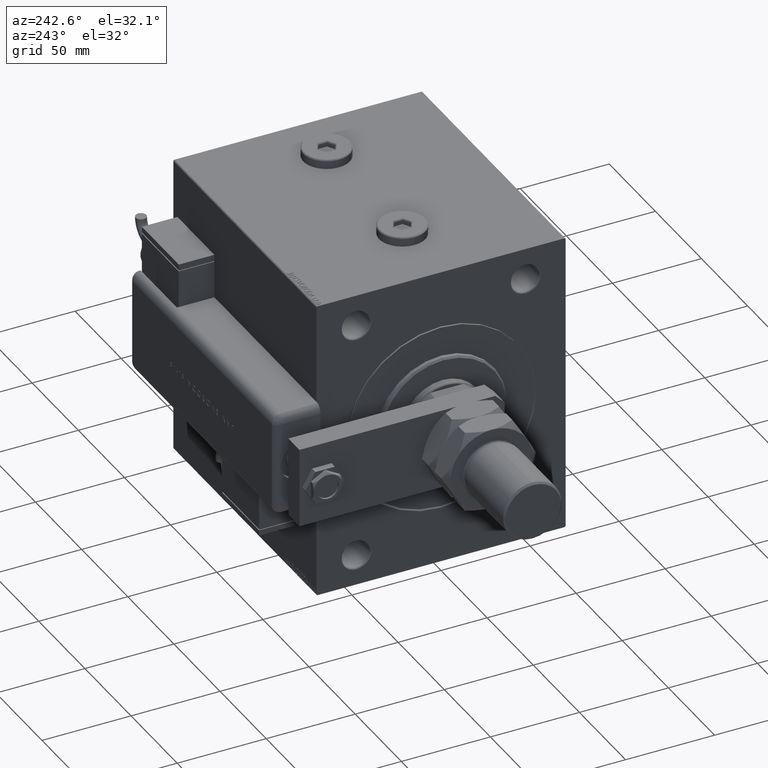
[diagram: clean part render]
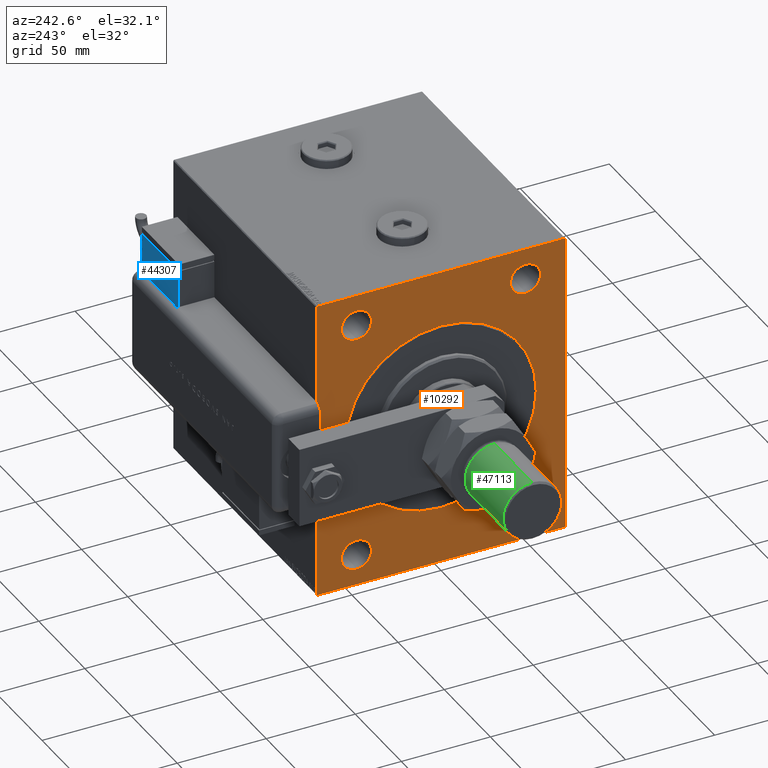
[diagram: same view with three faces highlighted in distinct colors, each labeled with its STEP entity id]
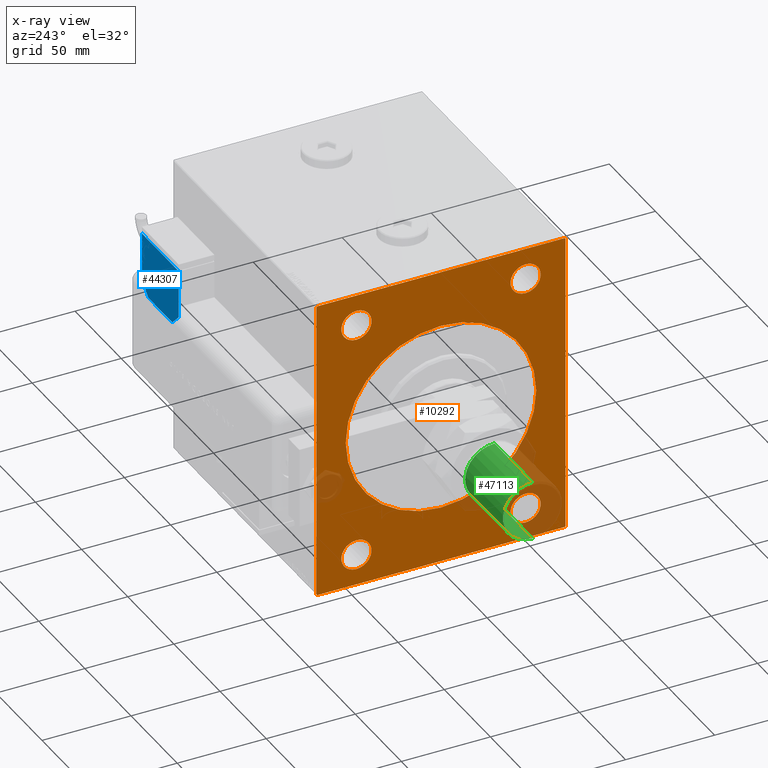
[diagram: x-ray of the same camera — body ghosted, the three highlighted faces saturated]
A machine part, auxiliary view with three faces highlighted in distinct colors.
The next image is the same camera in x-ray (body ghosted, the three faces saturated) — at least one of them is partly hidden behind the body in this view.
Their STEP definitions:

[orange] entity #10292 — the highlighted planar face has unit normal (1, 0, 0).
#214 = ORIENTED_EDGE ( 'NONE', *, *, #40410, .T. ) ;
#527 = CARTESIAN_POINT ( 'NONE',  ( 0.000000000000000000, -47.50000000000000000, 67.49999999999998579 ) ) ;
#664 = VECTOR ( 'NONE', #50471, 999.9999999999998863 ) ;
#706 = EDGE_CURVE ( 'NONE', #9161, #1271, #21251, .T. ) ;
#1271 = VERTEX_POINT ( 'NONE', #4213 ) ;
#1295 = VECTOR ( 'NONE', #50785, 1000.000000000000000 ) ;
#1581 = DIRECTION ( 'NONE',  ( 0.000000000000000000, -1.000000000000000000, -1.982541115402065110E-16 ) ) ;
#1719 = CARTESIAN_POINT ( 'NONE',  ( 0.000000000000000000, 69.50000000000000000, 85.00000000000001421 ) ) ;
#2438 = VERTEX_POINT ( 'NONE', #59064 ) ;
#2692 = CARTESIAN_POINT ( 'NONE',  ( 0.000000000000000000, 47.50000000000000000, 67.49999999999998579 ) ) ;
#2743 = CARTESIAN_POINT ( 'NONE',  ( 0.000000000000000000, 0.000000000000000000, 0.000000000000000000 ) ) ;
#2939 = CARTESIAN_POINT ( 'NONE',  ( 0.000000000000000000, 47.50000000000000000, 58.99999999999998579 ) ) ;
#3167 = CIRCLE ( 'NONE', #9406, 53.50000000000000000 ) ;
#3213 = FACE_BOUND ( 'NONE', #20355, .T. ) ;
#3376 = EDGE_CURVE ( 'NONE', #41146, #31833, #52880, .T. ) ;
#3522 = FACE_BOUND ( 'NONE', #34464, .T. ) ;
#3714 = AXIS2_PLACEMENT_3D ( 'NONE', #49515, #30989, #39634 ) ;
#4213 = CARTESIAN_POINT ( 'NONE',  ( 0.000000000000000000, -47.50000000000000000, 76.00000000000000000 ) ) ;
#4505 = EDGE_CURVE ( 'NONE', #59697, #44261, #61172, .T. ) ;
#4916 = DIRECTION ( 'NONE',  ( 0.000000000000000000, 1.000000000000000000, 0.000000000000000000 ) ) ;
#4974 = CARTESIAN_POINT ( 'NONE',  ( 0.000000000000000000, 47.50000000000000000, 76.00000000000000000 ) ) ;
#5144 = CARTESIAN_POINT ( 'NONE',  ( 0.000000000000000000, -47.50000000000000000, -67.50000000000001421 ) ) ;
#5542 = CARTESIAN_POINT ( 'NONE',  ( 0.000000000000000000, -47.50000000000000000, 58.99999999999998579 ) ) ;
#5591 = EDGE_LOOP ( 'NONE', ( #16585, #19368 ) ) ;
#5635 = DIRECTION ( 'NONE',  ( 1.000000000000000000, 0.000000000000000000, 0.000000000000000000 ) ) ;
#6873 = CARTESIAN_POINT ( 'NONE',  ( 0.000000000000000000, -47.50000000000000000, -76.00000000000002842 ) ) ;
#7156 = CARTESIAN_POINT ( 'NONE',  ( 0.000000000000000000, -47.50000000000000000, -59.00000000000001421 ) ) ;
#8565 = EDGE_CURVE ( 'NONE', #42341, #56795, #17515, .T. ) ;
#8666 = ORIENTED_EDGE ( 'NONE', *, *, #43281, .T. ) ;
#8756 = AXIS2_PLACEMENT_3D ( 'NONE', #14450, #38394, #57857 ) ;
#9161 = VERTEX_POINT ( 'NONE', #5542 ) ;
#9406 = AXIS2_PLACEMENT_3D ( 'NONE', #25615, #45094, #61370 ) ;
#9415 = ORIENTED_EDGE ( 'NONE', *, *, #44638, .F. ) ;
#9662 = ORIENTED_EDGE ( 'NONE', *, *, #19870, .T. ) ;
#9946 = DIRECTION ( 'NONE',  ( 1.000000000000000000, 0.000000000000000000, 0.000000000000000000 ) ) ;
#10292 = ADVANCED_FACE ( 'NONE', ( #47271, #3522, #3213, #55368, #16418, #42171 ), #11310, .F. ) ;
#10505 = CARTESIAN_POINT ( 'NONE',  ( 0.000000000000000000, 47.50000000000000000, -67.50000000000001421 ) ) ;
#10589 = VERTEX_POINT ( 'NONE', #45940 ) ;
#10889 = CIRCLE ( 'NONE', #3714, 8.500000000000007105 ) ;
#11310 = PLANE ( 'NONE',  #58226 ) ;
#11829 = VECTOR ( 'NONE', #53562, 1000.000000000000000 ) ;
#13220 = CARTESIAN_POINT ( 'NONE',  ( 0.000000000000000000, -47.50000000000000000, 67.49999999999998579 ) ) ;
#13522 = ORIENTED_EDGE ( 'NONE', *, *, #706, .T. ) ;
#14139 = VERTEX_POINT ( 'NONE', #23498 ) ;
#14450 = CARTESIAN_POINT ( 'NONE',  ( 0.000000000000000000, -47.50000000000000000, -67.50000000000001421 ) ) ;
#15239 = VECTOR ( 'NONE', #34355, 1000.000000000000000 ) ;
#15304 = DIRECTION ( 'NONE',  ( 1.000000000000000000, 0.000000000000000000, 0.000000000000000000 ) ) ;
#15365 = AXIS2_PLACEMENT_3D ( 'NONE', #10505, #15304, #24540 ) ;
#15399 = CARTESIAN_POINT ( 'NONE',  ( 0.000000000000000000, 47.50000000000000000, -59.00000000000001421 ) ) ;
#16418 = FACE_BOUND ( 'NONE', #31904, .T. ) ;
#16585 = ORIENTED_EDGE ( 'NONE', *, *, #4505, .T. ) ;
#17442 = DIRECTION ( 'NONE',  ( 1.000000000000000000, 0.000000000000000000, 0.000000000000000000 ) ) ;
#17515 = CIRCLE ( 'NONE', #39939, 8.500000000000007105 ) ;
#17566 = CARTESIAN_POINT ( 'NONE',  ( 0.000000000000000000, -70.00000000000000000, 84.99999999999998579 ) ) ;
#17693 = ORIENTED_EDGE ( 'NONE', *, *, #8565, .T. ) ;
#17894 = VECTOR ( 'NONE', #55606, 999.9999999999998863 ) ;
#17911 = DIRECTION ( 'NONE',  ( 1.000000000000000000, 0.000000000000000000, 0.000000000000000000 ) ) ;
#18374 = LINE ( 'NONE', #48675, #53842 ) ;
#18981 = DIRECTION ( 'NONE',  ( -0.000000000000000000, 0.7071067811865672237, 0.7071067811865279218 ) ) ;
#19368 = ORIENTED_EDGE ( 'NONE', *, *, #20689, .T. ) ;
#19870 = EDGE_CURVE ( 'NONE', #1271, #9161, #43271, .T. ) ;
#20355 = EDGE_LOOP ( 'NONE', ( #9662, #13522 ) ) ;
#20689 = EDGE_CURVE ( 'NONE', #44261, #59697, #45376, .T. ) ;
#21251 = CIRCLE ( 'NONE', #63079, 8.500000000000007105 ) ;
#21554 = DIRECTION ( 'NONE',  ( 1.000000000000000000, 0.000000000000000000, 0.000000000000000000 ) ) ;
#21918 = AXIS2_PLACEMENT_3D ( 'NONE', #13220, #47679, #56949 ) ;
#22487 = DIRECTION ( 'NONE',  ( 0.000000000000000000, 0.000000000000000000, -1.000000000000000000 ) ) ;
#23498 = CARTESIAN_POINT ( 'NONE',  ( 0.000000000000000000, -70.00000000000000000, 84.49999999999998579 ) ) ;
#23505 = CARTESIAN_POINT ( 'NONE',  ( 0.000000000000000000, 47.50000000000000000, 67.49999999999998579 ) ) ;
#23945 = AXIS2_PLACEMENT_3D ( 'NONE', #2692, #21554, #22487 ) ;
#24049 = EDGE_CURVE ( 'NONE', #41146, #38832, #40883, .T. ) ;
#24329 = EDGE_CURVE ( 'NONE', #28331, #29858, #10889, .T. ) ;
#24418 = EDGE_LOOP ( 'NONE', ( #9415, #8666, #28262, #32895, #51478, #31306, #55689, #24722 ) ) ;
#24540 = DIRECTION ( 'NONE',  ( 0.000000000000000000, 0.000000000000000000, -1.000000000000000000 ) ) ;
#24722 = ORIENTED_EDGE ( 'NONE', *, *, #50611, .T. ) ;
#25615 = CARTESIAN_POINT ( 'NONE',  ( 0.000000000000000000, 0.000000000000000000, 0.000000000000000000 ) ) ;
#25742 = DIRECTION ( 'NONE',  ( 0.000000000000000000, 0.000000000000000000, -1.000000000000000000 ) ) ;
#28262 = ORIENTED_EDGE ( 'NONE', *, *, #51954, .F. ) ;
#28331 = VERTEX_POINT ( 'NONE', #15399 ) ;
#28927 = DIRECTION ( 'NONE',  ( 0.000000000000000000, 0.000000000000000000, -1.000000000000000000 ) ) ;
#29858 = VERTEX_POINT ( 'NONE', #31513 ) ;
#30989 = DIRECTION ( 'NONE',  ( 1.000000000000000000, 0.000000000000000000, 0.000000000000000000 ) ) ;
#31142 = CARTESIAN_POINT ( 'NONE',  ( 0.000000000000000000, 70.00000000000001421, -84.50000000000000000 ) ) ;
#31306 = ORIENTED_EDGE ( 'NONE', *, *, #24049, .T. ) ;
#31513 = CARTESIAN_POINT ( 'NONE',  ( 0.000000000000000000, 47.50000000000000000, -76.00000000000002842 ) ) ;
#31833 = VERTEX_POINT ( 'NONE', #59574 ) ;
#31904 = EDGE_LOOP ( 'NONE', ( #51295, #59099 ) ) ;
#32206 = CIRCLE ( 'NONE', #40358, 53.50000000000000000 ) ;
#32430 = LINE ( 'NONE', #33671, #51227 ) ;
#32608 = CARTESIAN_POINT ( 'NONE',  ( 0.000000000000000000, 69.50000000000000000, -85.00000000000000000 ) ) ;
#32895 = ORIENTED_EDGE ( 'NONE', *, *, #55489, .T. ) ;
#33671 = CARTESIAN_POINT ( 'NONE',  ( 0.000000000000000000, -70.00000000000000000, 84.49999999999998579 ) ) ;
#33731 = DIRECTION ( 'NONE',  ( 1.000000000000000000, 0.000000000000000000, 0.000000000000000000 ) ) ;
#34355 = DIRECTION ( 'NONE',  ( 0.000000000000000000, -8.163404592832031500E-17, 1.000000000000000000 ) ) ;
#34464 = EDGE_LOOP ( 'NONE', ( #43899, #17693 ) ) ;
#35596 = ORIENTED_EDGE ( 'NONE', *, *, #55197, .T. ) ;
#36033 = EDGE_CURVE ( 'NONE', #29858, #28331, #59189, .T. ) ;
#36079 = LINE ( 'NONE', #46582, #52620 ) ;
#36312 = CIRCLE ( 'NONE', #8756, 8.500000000000007105 ) ;
#38394 = DIRECTION ( 'NONE',  ( 1.000000000000000000, 0.000000000000000000, 0.000000000000000000 ) ) ;
#38745 = AXIS2_PLACEMENT_3D ( 'NONE', #23505, #33731, #28927 ) ;
#38832 = VERTEX_POINT ( 'NONE', #32608 ) ;
#39093 = VERTEX_POINT ( 'NONE', #58023 ) ;
#39150 = VERTEX_POINT ( 'NONE', #57713 ) ;
#39634 = DIRECTION ( 'NONE',  ( 0.000000000000000000, 0.000000000000000000, -1.000000000000000000 ) ) ;
#39939 = AXIS2_PLACEMENT_3D ( 'NONE', #5144, #9946, #40267 ) ;
#40267 = DIRECTION ( 'NONE',  ( 0.000000000000000000, 0.000000000000000000, -1.000000000000000000 ) ) ;
#40358 = AXIS2_PLACEMENT_3D ( 'NONE', #2743, #17442, #42320 ) ;
#40410 = EDGE_CURVE ( 'NONE', #2438, #39150, #3167, .T. ) ;
#40878 = LINE ( 'NONE', #17566, #1295 ) ;
#40883 = LINE ( 'NONE', #60674, #664 ) ;
#41146 = VERTEX_POINT ( 'NONE', #31142 ) ;
#42086 = LINE ( 'NONE', #1719, #11829 ) ;
#42171 = FACE_OUTER_BOUND ( 'NONE', #24418, .T. ) ;
#42320 = DIRECTION ( 'NONE',  ( 0.000000000000000000, 0.000000000000000000, -1.000000000000000000 ) ) ;
#42341 = VERTEX_POINT ( 'NONE', #6873 ) ;
#43271 = CIRCLE ( 'NONE', #21918, 8.500000000000007105 ) ;
#43281 = EDGE_CURVE ( 'NONE', #14139, #10589, #32430, .T. ) ;
#43894 = VERTEX_POINT ( 'NONE', #58686 ) ;
#43899 = ORIENTED_EDGE ( 'NONE', *, *, #55700, .T. ) ;
#44261 = VERTEX_POINT ( 'NONE', #2939 ) ;
#44570 = CARTESIAN_POINT ( 'NONE',  ( 0.000000000000000000, -69.50000000000000000, -85.00000000000000000 ) ) ;
#44638 = EDGE_CURVE ( 'NONE', #14139, #39093, #40878, .T. ) ;
#45094 = DIRECTION ( 'NONE',  ( 1.000000000000000000, 0.000000000000000000, 0.000000000000000000 ) ) ;
#45376 = CIRCLE ( 'NONE', #23945, 8.500000000000007105 ) ;
#45940 = CARTESIAN_POINT ( 'NONE',  ( 0.000000000000000000, -69.49999999999997158, 84.99999999999998579 ) ) ;
#46582 = CARTESIAN_POINT ( 'NONE',  ( 0.000000000000000000, 70.00000000000000000, 85.00000000000001421 ) ) ;
#47271 = FACE_BOUND ( 'NONE', #48322, .T. ) ;
#47679 = DIRECTION ( 'NONE',  ( 1.000000000000000000, 0.000000000000000000, 0.000000000000000000 ) ) ;
#48322 = EDGE_LOOP ( 'NONE', ( #35596, #214 ) ) ;
#48675 = CARTESIAN_POINT ( 'NONE',  ( 0.000000000000000000, -70.00000000000000000, -85.00000000000000000 ) ) ;
#49515 = CARTESIAN_POINT ( 'NONE',  ( 0.000000000000000000, 47.50000000000000000, -67.50000000000001421 ) ) ;
#50471 = DIRECTION ( 'NONE',  ( 0.000000000000000000, -0.7071067811865574537, -0.7071067811865376918 ) ) ;
#50611 = EDGE_CURVE ( 'NONE', #60984, #39093, #51143, .T. ) ;
#50785 = DIRECTION ( 'NONE',  ( 0.000000000000000000, 0.000000000000000000, -1.000000000000000000 ) ) ;
#50828 = CARTESIAN_POINT ( 'NONE',  ( 0.000000000000000000, -69.50000000000000000, -85.00000000000000000 ) ) ;
#51143 = LINE ( 'NONE', #50828, #17894 ) ;
#51227 = VECTOR ( 'NONE', #18981, 1000.000000000000000 ) ;
#51295 = ORIENTED_EDGE ( 'NONE', *, *, #24329, .T. ) ;
#51478 = ORIENTED_EDGE ( 'NONE', *, *, #3376, .F. ) ;
#51954 = EDGE_CURVE ( 'NONE', #43894, #10589, #36079, .T. ) ;
#52620 = VECTOR ( 'NONE', #1581, 1000.000000000000000 ) ;
#52880 = LINE ( 'NONE', #63078, #15239 ) ;
#53562 = DIRECTION ( 'NONE',  ( -0.000000000000000000, 0.7071067811865181518, -0.7071067811865769936 ) ) ;
#53842 = VECTOR ( 'NONE', #4916, 1000.000000000000000 ) ;
#55197 = EDGE_CURVE ( 'NONE', #39150, #2438, #32206, .T. ) ;
#55368 = FACE_BOUND ( 'NONE', #5591, .T. ) ;
#55489 = EDGE_CURVE ( 'NONE', #43894, #31833, #42086, .T. ) ;
#55606 = DIRECTION ( 'NONE',  ( -0.000000000000000000, -0.7071067811865376918, 0.7071067811865574537 ) ) ;
#55689 = ORIENTED_EDGE ( 'NONE', *, *, #62525, .F. ) ;
#55700 = EDGE_CURVE ( 'NONE', #56795, #42341, #36312, .T. ) ;
#56795 = VERTEX_POINT ( 'NONE', #7156 ) ;
#56853 = DIRECTION ( 'NONE',  ( 0.000000000000000000, 0.000000000000000000, -1.000000000000000000 ) ) ;
#56949 = DIRECTION ( 'NONE',  ( 0.000000000000000000, 0.000000000000000000, -1.000000000000000000 ) ) ;
#57713 = CARTESIAN_POINT ( 'NONE',  ( 0.000000000000000000, 0.000000000000000000, 53.50000000000000000 ) ) ;
#57857 = DIRECTION ( 'NONE',  ( 0.000000000000000000, 0.000000000000000000, -1.000000000000000000 ) ) ;
#58023 = CARTESIAN_POINT ( 'NONE',  ( 0.000000000000000000, -70.00000000000000000, -84.49999999999998579 ) ) ;
#58226 = AXIS2_PLACEMENT_3D ( 'NONE', #60155, #17911, #56853 ) ;
#58686 = CARTESIAN_POINT ( 'NONE',  ( 0.000000000000000000, 69.50000000000000000, 85.00000000000001421 ) ) ;
#59064 = CARTESIAN_POINT ( 'NONE',  ( 0.000000000000000000, 6.551860375438339893E-15, -53.50000000000000000 ) ) ;
#59099 = ORIENTED_EDGE ( 'NONE', *, *, #36033, .T. ) ;
#59189 = CIRCLE ( 'NONE', #15365, 8.500000000000007105 ) ;
#59574 = CARTESIAN_POINT ( 'NONE',  ( 0.000000000000000000, 70.00000000000000000, 84.49999999999997158 ) ) ;
#59697 = VERTEX_POINT ( 'NONE', #4974 ) ;
#60155 = CARTESIAN_POINT ( 'NONE',  ( 0.000000000000000000, 0.000000000000000000, 0.000000000000000000 ) ) ;
#60674 = CARTESIAN_POINT ( 'NONE',  ( 0.000000000000000000, 70.00000000000001421, -84.50000000000000000 ) ) ;
#60984 = VERTEX_POINT ( 'NONE', #44570 ) ;
#61172 = CIRCLE ( 'NONE', #38745, 8.500000000000007105 ) ;
#61370 = DIRECTION ( 'NONE',  ( 0.000000000000000000, 0.000000000000000000, -1.000000000000000000 ) ) ;
#62525 = EDGE_CURVE ( 'NONE', #60984, #38832, #18374, .T. ) ;
#63078 = CARTESIAN_POINT ( 'NONE',  ( 0.000000000000000000, 70.00000000000001421, -85.00000000000000000 ) ) ;
#63079 = AXIS2_PLACEMENT_3D ( 'NONE', #527, #5635, #25742 ) ;

[blue] entity #44307 — the highlighted planar face has unit normal (-0, -1, 0).
#25 = DIRECTION ( 'NONE',  ( 1.284980352575412699E-16, 1.000000000000000000, 0.000000000000000000 ) ) ;
#339 = CARTESIAN_POINT ( 'NONE',  ( 20.00000000000005329, -13.49999999999996092, -10.00000000000000000 ) ) ;
#1343 = EDGE_CURVE ( 'NONE', #49874, #29918, #62032, .T. ) ;
#3702 = DIRECTION ( 'NONE',  ( 1.000000000000000000, 0.000000000000000000, 0.000000000000000000 ) ) ;
#3874 = EDGE_CURVE ( 'NONE', #36123, #9298, #8355, .T. ) ;
#6331 = CARTESIAN_POINT ( 'NONE',  ( -12.99999999999994138, 20.50000000000009592, -10.00000000000000000 ) ) ;
#6466 = ORIENTED_EDGE ( 'NONE', *, *, #44514, .F. ) ;
#6645 = ORIENTED_EDGE ( 'NONE', *, *, #3874, .F. ) ;
#7325 = VECTOR ( 'NONE', #3702, 1000.000000000000000 ) ;
#8355 = LINE ( 'NONE', #61374, #22432 ) ;
#9298 = VERTEX_POINT ( 'NONE', #14117 ) ;
#9605 = DIRECTION ( 'NONE',  ( 1.000000000000000000, 0.000000000000000000, -0.000000000000000000 ) ) ;
#9932 = EDGE_CURVE ( 'NONE', #9298, #19630, #20493, .T. ) ;
#10072 = CARTESIAN_POINT ( 'NONE',  ( -19.99999999999994316, -13.49999999999996092, -10.00000000000000000 ) ) ;
#10283 = DIRECTION ( 'NONE',  ( -1.284980352575421081E-16, -1.000000000000000000, -0.000000000000000000 ) ) ;
#11206 = ORIENTED_EDGE ( 'NONE', *, *, #27805, .F. ) ;
#12223 = ORIENTED_EDGE ( 'NONE', *, *, #39973, .T. ) ;
#12359 = CARTESIAN_POINT ( 'NONE',  ( 20.00000000000005329, -13.49999999999996092, -10.00000000000000000 ) ) ;
#12980 = CARTESIAN_POINT ( 'NONE',  ( -19.99999999999993960, 2.569960705150834076E-15, -9.999999999999996447 ) ) ;
#13184 = VECTOR ( 'NONE', #37775, 1000.000000000000114 ) ;
#14117 = CARTESIAN_POINT ( 'NONE',  ( -19.99999999999993960, 13.49999999999986500, -10.00000000000000000 ) ) ;
#14230 = ORIENTED_EDGE ( 'NONE', *, *, #9932, .F. ) ;
#16256 = DIRECTION ( 'NONE',  ( 1.000000000000000000, 0.000000000000000000, 0.000000000000000000 ) ) ;
#17399 = ORIENTED_EDGE ( 'NONE', *, *, #40087, .F. ) ;
#17955 = PLANE ( 'NONE',  #57356 ) ;
#18262 = DIRECTION ( 'NONE',  ( 0.000000000000000000, 0.000000000000000000, 1.000000000000000000 ) ) ;
#18295 = CARTESIAN_POINT ( 'NONE',  ( 9.999999999999984013, 23.50000000000009592, -10.00000000000000000 ) ) ;
#19630 = VERTEX_POINT ( 'NONE', #12980 ) ;
#20493 = LINE ( 'NONE', #45380, #38972 ) ;
#20726 = LINE ( 'NONE', #54268, #41619 ) ;
#22432 = VECTOR ( 'NONE', #27512, 1000.000000000000000 ) ;
#27512 = DIRECTION ( 'NONE',  ( -0.7071067811865356934, -0.7071067811865593411, -0.000000000000000000 ) ) ;
#27805 = EDGE_CURVE ( 'NONE', #55088, #57479, #20726, .T. ) ;
#28143 = FACE_OUTER_BOUND ( 'NONE', #58109, .T. ) ;
#29918 = VERTEX_POINT ( 'NONE', #51254 ) ;
#34502 = ORIENTED_EDGE ( 'NONE', *, *, #1343, .F. ) ;
#36123 = VERTEX_POINT ( 'NONE', #6331 ) ;
#37775 = DIRECTION ( 'NONE',  ( -0.7071067811865479058, 0.7071067811865470176, -0.000000000000000000 ) ) ;
#37881 = LINE ( 'NONE', #52563, #7325 ) ;
#38972 = VECTOR ( 'NONE', #10283, 1000.000000000000000 ) ;
#39973 = EDGE_CURVE ( 'NONE', #36123, #29918, #37881, .T. ) ;
#40087 = EDGE_CURVE ( 'NONE', #19630, #55088, #53820, .T. ) ;
#41619 = VECTOR ( 'NONE', #16256, 1000.000000000000000 ) ;
#42007 = VECTOR ( 'NONE', #58912, 1000.000000000000000 ) ;
#43081 = VECTOR ( 'NONE', #25, 1000.000000000000000 ) ;
#44278 = CARTESIAN_POINT ( 'NONE',  ( 20.00000000000005684, 13.50000000000003730, -10.00000000000000000 ) ) ;
#44307 = ADVANCED_FACE ( 'NONE', ( #28143 ), #17955, .F. ) ;
#44514 = EDGE_CURVE ( 'NONE', #57479, #49874, #59726, .T. ) ;
#45380 = CARTESIAN_POINT ( 'NONE',  ( -19.99999999999994316, -13.49999999999996092, -10.00000000000000000 ) ) ;
#49874 = VERTEX_POINT ( 'NONE', #44278 ) ;
#51254 = CARTESIAN_POINT ( 'NONE',  ( 12.99999999999999112, 20.50000000000009592, -10.00000000000000000 ) ) ;
#51912 = CARTESIAN_POINT ( 'NONE',  ( -19.99999999999994316, -13.49999999999996092, -10.00000000000000000 ) ) ;
#52563 = CARTESIAN_POINT ( 'NONE',  ( 0.000000000000000000, 20.50000000000009592, -10.00000000000000000 ) ) ;
#53367 = CARTESIAN_POINT ( 'NONE',  ( 0.000000000000000000, 0.000000000000000000, -10.00000000000000000 ) ) ;
#53820 = LINE ( 'NONE', #10072, #42007 ) ;
#54268 = CARTESIAN_POINT ( 'NONE',  ( -19.99999999999994316, -13.49999999999996092, -10.00000000000000000 ) ) ;
#55088 = VERTEX_POINT ( 'NONE', #51912 ) ;
#57356 = AXIS2_PLACEMENT_3D ( 'NONE', #53367, #18262, #9605 ) ;
#57479 = VERTEX_POINT ( 'NONE', #12359 ) ;
#58109 = EDGE_LOOP ( 'NONE', ( #6645, #12223, #34502, #6466, #11206, #17399, #14230 ) ) ;
#58912 = DIRECTION ( 'NONE',  ( -1.284980352575421081E-16, -1.000000000000000000, -0.000000000000000000 ) ) ;
#59726 = LINE ( 'NONE', #339, #43081 ) ;
#61374 = CARTESIAN_POINT ( 'NONE',  ( -19.99999999999993960, 13.49999999999986500, -10.00000000000000000 ) ) ;
#62032 = LINE ( 'NONE', #18295, #13184 ) ;

[green] entity #47113 — the highlighted cylindrical surface (edge-blend (fillet) strip) has radius 16.5 mm, axis along (1, -0, -0).
#1289 = CARTESIAN_POINT ( 'NONE',  ( -16.50000000000000000, 0.000000000000000000, 72.00000000000000000 ) ) ;
#2272 = CIRCLE ( 'NONE', #9377, 16.50000000000000000 ) ;
#7400 = EDGE_CURVE ( 'NONE', #47868, #25079, #33565, .T. ) ;
#7448 = ORIENTED_EDGE ( 'NONE', *, *, #58783, .T. ) ;
#9377 = AXIS2_PLACEMENT_3D ( 'NONE', #35186, #21131, #54662 ) ;
#9858 = EDGE_CURVE ( 'NONE', #24391, #47868, #2272, .T. ) ;
#18516 = FACE_OUTER_BOUND ( 'NONE', #33096, .T. ) ;
#18822 = CARTESIAN_POINT ( 'NONE',  ( 0.000000000000000000, 0.000000000000000000, 73.00000000000000000 ) ) ;
#18875 = DIRECTION ( 'NONE',  ( -0.000000000000000000, -0.000000000000000000, -1.000000000000000000 ) ) ;
#20840 = LINE ( 'NONE', #54692, #29167 ) ;
#21131 = DIRECTION ( 'NONE',  ( 0.000000000000000000, 0.000000000000000000, -1.000000000000000000 ) ) ;
#22075 = CIRCLE ( 'NONE', #51611, 16.50000000000000000 ) ;
#24391 = VERTEX_POINT ( 'NONE', #1289 ) ;
#25079 = VERTEX_POINT ( 'NONE', #41905 ) ;
#29167 = VECTOR ( 'NONE', #60423, 1000.000000000000000 ) ;
#29400 = CARTESIAN_POINT ( 'NONE',  ( 16.50000000000000000, 2.020667218593133100E-15, 73.00000000000000000 ) ) ;
#30764 = CARTESIAN_POINT ( 'NONE',  ( -16.50000000000000000, 0.000000000000000000, 30.99999999999998579 ) ) ;
#30977 = AXIS2_PLACEMENT_3D ( 'NONE', #18822, #43077, #53630 ) ;
#32722 = DIRECTION ( 'NONE',  ( -0.000000000000000000, -0.000000000000000000, 1.000000000000000000 ) ) ;
#33096 = EDGE_LOOP ( 'NONE', ( #48227, #61322, #7448, #40667 ) ) ;
#33565 = LINE ( 'NONE', #29400, #43973 ) ;
#35186 = CARTESIAN_POINT ( 'NONE',  ( 0.000000000000000000, 0.000000000000000000, 72.00000000000000000 ) ) ;
#37195 = CARTESIAN_POINT ( 'NONE',  ( 0.000000000000000000, 0.000000000000000000, 30.99999999999998579 ) ) ;
#40667 = ORIENTED_EDGE ( 'NONE', *, *, #57999, .F. ) ;
#41905 = CARTESIAN_POINT ( 'NONE',  ( 16.50000000000000000, 2.020667218593133100E-15, 30.99999999999998579 ) ) ;
#42460 = CYLINDRICAL_SURFACE ( 'NONE', #30977, 16.50000000000000000 ) ;
#43077 = DIRECTION ( 'NONE',  ( -0.000000000000000000, -0.000000000000000000, -1.000000000000000000 ) ) ;
#43973 = VECTOR ( 'NONE', #18875, 1000.000000000000000 ) ;
#46607 = VERTEX_POINT ( 'NONE', #30764 ) ;
#47113 = ADVANCED_FACE ( 'NONE', ( #18516 ), #42460, .T. ) ;
#47868 = VERTEX_POINT ( 'NONE', #52766 ) ;
#48227 = ORIENTED_EDGE ( 'NONE', *, *, #9858, .T. ) ;
#51611 = AXIS2_PLACEMENT_3D ( 'NONE', #37195, #32722, #56659 ) ;
#52766 = CARTESIAN_POINT ( 'NONE',  ( 16.50000000000000000, 2.020667218593133100E-15, 72.00000000000000000 ) ) ;
#53630 = DIRECTION ( 'NONE',  ( -1.000000000000000000, 0.000000000000000000, 0.000000000000000000 ) ) ;
#54662 = DIRECTION ( 'NONE',  ( 1.000000000000000000, 0.000000000000000000, 0.000000000000000000 ) ) ;
#54692 = CARTESIAN_POINT ( 'NONE',  ( -16.50000000000000000, 0.000000000000000000, 73.00000000000000000 ) ) ;
#56659 = DIRECTION ( 'NONE',  ( 1.000000000000000000, 0.000000000000000000, 0.000000000000000000 ) ) ;
#57999 = EDGE_CURVE ( 'NONE', #24391, #46607, #20840, .T. ) ;
#58783 = EDGE_CURVE ( 'NONE', #25079, #46607, #22075, .T. ) ;
#60423 = DIRECTION ( 'NONE',  ( -0.000000000000000000, -0.000000000000000000, -1.000000000000000000 ) ) ;
#61322 = ORIENTED_EDGE ( 'NONE', *, *, #7400, .T. ) ;